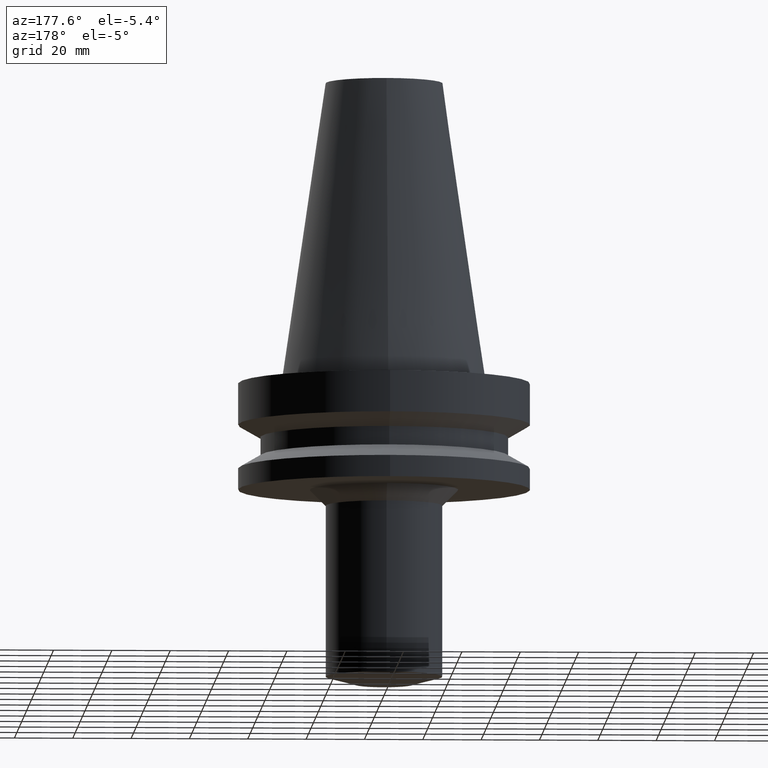
[diagram: clean part render]
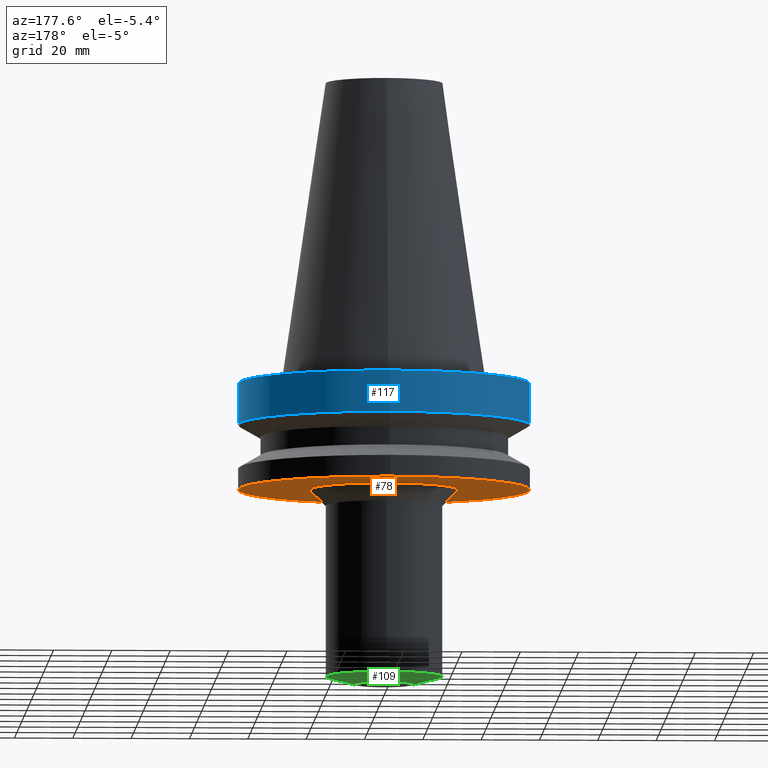
[diagram: same view with three faces highlighted in distinct colors, each labeled with its STEP entity id]
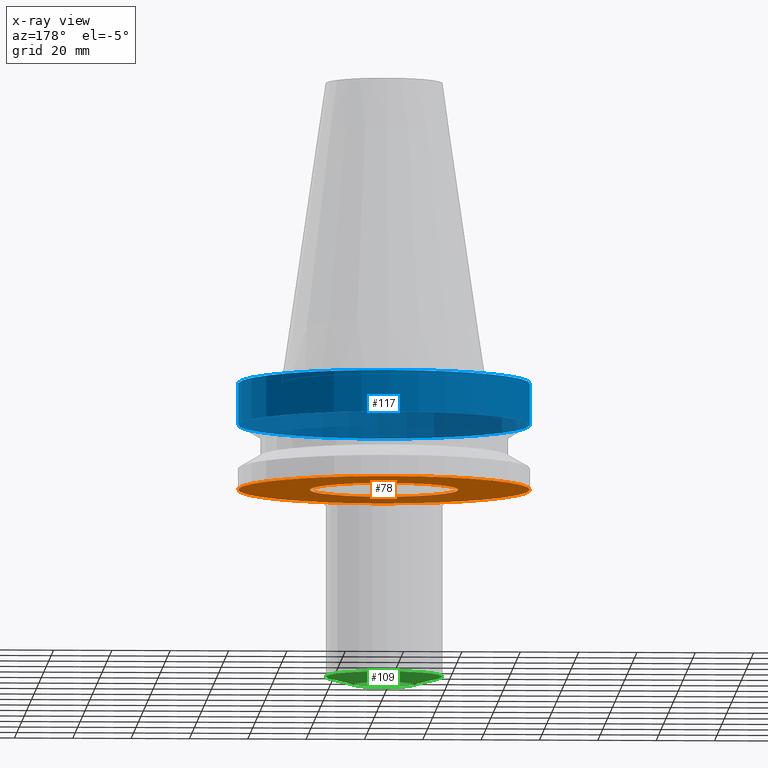
[diagram: x-ray of the same camera — body ghosted, the three highlighted faces saturated]
A machine part, auxiliary view with three faces highlighted in distinct colors.
The next image is the same camera in x-ray (body ghosted, the three faces saturated) — at least one of them is partly hidden behind the body in this view.
Their STEP definitions:

[orange] entity #78 — the highlighted planar face has unit normal (0, 0, -1).
#78=ADVANCED_FACE('Unnamed[1]',(#178,#179),#180,.T.);
#83=EDGE_CURVE('Unnamed[1]',#187,#187,#188,.T.);
#119=EDGE_CURVE('Unnamed[1]',#243,#243,#244,.T.);
#178=FACE_BOUND('',#304,.T.);
#179=FACE_OUTER_BOUND('',#305,.T.);
#180=PLANE('',#306);
#187=VERTEX_POINT('',#315);
#188=CIRCLE('',#316,50.0);
#243=VERTEX_POINT('',#385);
#244=CIRCLE('',#386,25.4999999999905);
#304=EDGE_LOOP('',(#433));
#305=EDGE_LOOP('',(#434));
#306=AXIS2_PLACEMENT_3D('',#435,#436,#437);
#315=CARTESIAN_POINT('',(2.32682891837997E-015,50.0,-38.0));
#316=AXIS2_PLACEMENT_3D('',#444,#445,#446);
#385=CARTESIAN_POINT('',(2.32682891837997E-015,25.4999999999905,-38.0));
#386=AXIS2_PLACEMENT_3D('',#508,#509,#510);
#433=ORIENTED_EDGE('',*,*,#119,.F.);
#434=ORIENTED_EDGE('',*,*,#83,.T.);
#435=CARTESIAN_POINT('',(2.32682891837997E-015,37.7499999999953,-38.0));
#436=DIRECTION('',(6.12323399573677E-017,1.22464679914735E-016,-1.0));
#437=DIRECTION('',(-1.23259516440783E-032,1.0,1.22464679914735E-016));
#444=CARTESIAN_POINT('',(2.32682891837997E-015,4.65365783675994E-015,-38.0));
#445=DIRECTION('',(6.12323399573677E-017,1.22464679914735E-016,-1.0));
#446=DIRECTION('',(-1.23259516440783E-032,1.0,1.22464679914735E-016));
#508=CARTESIAN_POINT('',(2.32682891837997E-015,4.65365783675994E-015,-38.0));
#509=DIRECTION('',(6.12323399573677E-017,1.22464679914735E-016,-1.0));
#510=DIRECTION('',(-1.23259516440783E-032,1.0,1.22464679914735E-016));

[blue] entity #117 — the highlighted cylindrical surface (bore or boss wall) has radius 50 mm, axis along (0, 0, -1).
#55=EDGE_CURVE('Unnamed[1]',#144,#144,#145,.T.);
#65=EDGE_CURVE('Unnamed[1]',#158,#158,#159,.T.);
#117=ADVANCED_FACE('Unnamed[1]',(#239,#240),#241,.T.);
#144=VERTEX_POINT('',#262);
#145=CIRCLE('',#263,50.0);
#158=VERTEX_POINT('',#279);
#159=CIRCLE('',#280,50.0);
#239=FACE_BOUND('',#380,.T.);
#240=FACE_BOUND('',#381,.T.);
#241=CYLINDRICAL_SURFACE('',#382,50.0);
#262=CARTESIAN_POINT('',(9.18485099360509E-017,50.0,-1.49999999999999));
#263=AXIS2_PLACEMENT_3D('',#398,#399,#400);
#279=CARTESIAN_POINT('',(9.61347737330674E-016,50.0,-15.7));
#280=AXIS2_PLACEMENT_3D('',#411,#412,#413);
#380=EDGE_LOOP('',(#503));
#381=EDGE_LOOP('',(#504));
#382=AXIS2_PLACEMENT_3D('',#505,#506,#507);
#398=CARTESIAN_POINT('',(9.18485099360515E-017,1.83697019872103E-016,-1.5));
#399=DIRECTION('',(6.12323399573677E-017,1.22464679914735E-016,-1.0));
#400=DIRECTION('',(-1.23259516440783E-032,1.0,1.22464679914735E-016));
#411=CARTESIAN_POINT('',(9.61347737330675E-016,1.92269547466135E-015,-15.7));
#412=DIRECTION('',(6.12323399573677E-017,1.22464679914735E-016,-1.0));
#413=DIRECTION('',(-1.23259516440783E-032,1.0,1.22464679914735E-016));
#503=ORIENTED_EDGE('',*,*,#65,.F.);
#504=ORIENTED_EDGE('',*,*,#55,.T.);
#505=CARTESIAN_POINT('',(5.26598123633363E-016,1.05319624726673E-015,-8.60000000000002));
#506=DIRECTION('',(6.12323399573677E-017,1.22464679914735E-016,-1.0));
#507=DIRECTION('',(-1.23259516440783E-032,1.0,1.22464679914735E-016));

[green] entity #109 — the highlighted conical surface has half-angle 75 deg.
#63=EDGE_CURVE('Unnamed[1]',#155,#155,#156,.T.);
#109=ADVANCED_FACE('Unnamed[1]',(#226,#227),#228,.T.);
#121=EDGE_CURVE('Unnamed[1]',#246,#246,#247,.T.);
#155=VERTEX_POINT('',#275);
#156=CIRCLE('',#276,20.0000000000053);
#226=FACE_BOUND('',#364,.T.);
#227=FACE_BOUND('',#365,.T.);
#228=CONICAL_SURFACE('',#366,15.0000000000054,1.30899693899576);
#246=VERTEX_POINT('',#389);
#247=CIRCLE('',#390,10.0000000000054);
#275=CARTESIAN_POINT('',(6.26532413510127E-015,20.0000000000053,-102.320508075691));
#276=AXIS2_PLACEMENT_3D('',#408,#409,#410);
#364=EDGE_LOOP('',(#488));
#365=EDGE_LOOP('',(#489));
#366=AXIS2_PLACEMENT_3D('',#490,#491,#492);
#389=CARTESIAN_POINT('',(6.42939569552371E-015,10.0000000000054,-105.000000000002));
#390=AXIS2_PLACEMENT_3D('',#511,#512,#513);
#408=CARTESIAN_POINT('',(6.26532413510127E-015,1.25306482702025E-014,-102.320508075691));
#409=DIRECTION('',(6.12323399573677E-017,1.22464679914735E-016,-1.0));
#410=DIRECTION('',(-1.23259516440783E-032,1.0,1.22464679914735E-016));
#488=ORIENTED_EDGE('',*,*,#121,.F.);
#489=ORIENTED_EDGE('',*,*,#63,.T.);
#490=CARTESIAN_POINT('',(6.34735991531249E-015,1.2694719830625E-014,-103.660254037846));
#491=DIRECTION('',(-6.12323399573677E-017,-1.22464679914735E-016,1.0));
#492=DIRECTION('',(-1.23259516440783E-032,1.0,1.22464679914735E-016));
#511=CARTESIAN_POINT('',(6.42939569552371E-015,1.28587913910474E-014,-105.000000000002));
#512=DIRECTION('',(6.12323399573677E-017,1.22464679914735E-016,-1.0));
#513=DIRECTION('',(-1.23259516440783E-032,1.0,1.22464679914735E-016));